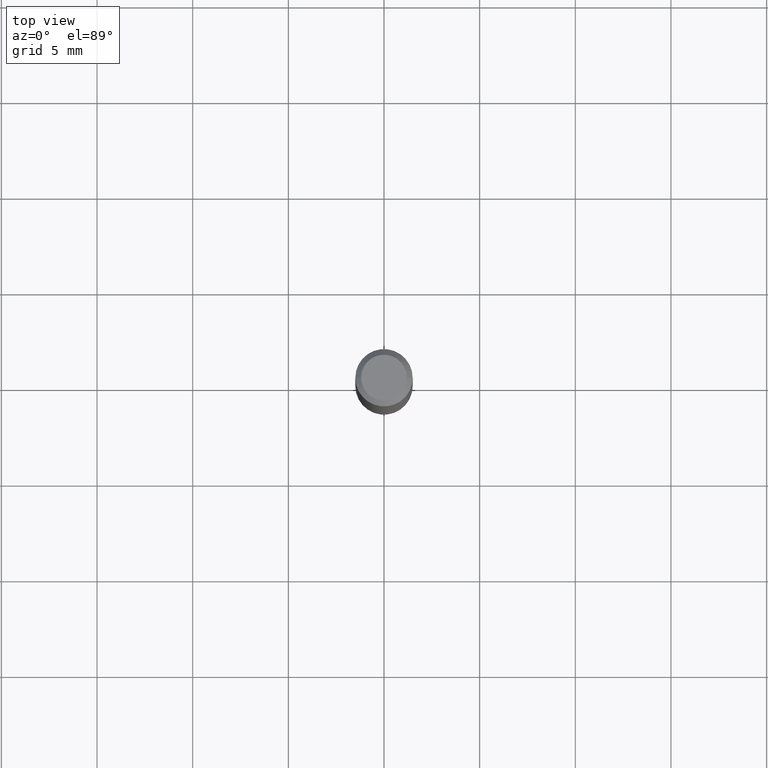
[diagram: clean part render]
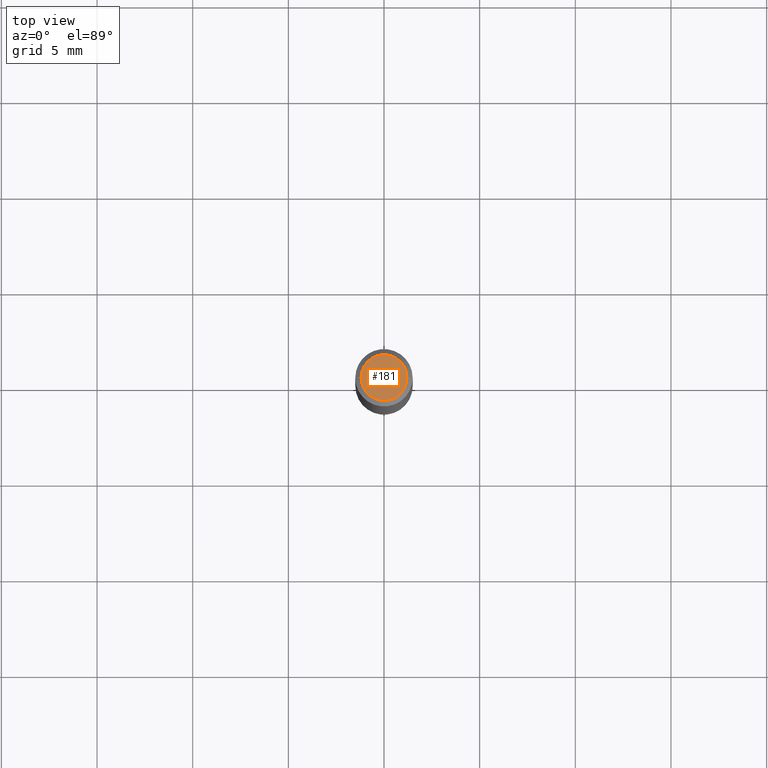
[diagram: same view with one face highlighted and labeled with its STEP entity id]
A machine part, top view. The second image highlights one B-rep face of the part: STEP entity #181.
In plain terms, the highlighted planar face has unit normal (0, -0, -1).
Its self-contained STEP definition (entity closure, byte-faithful):
#8 = ORIENTED_EDGE ( 'NONE', *, *, #32, .T. ) ;
#15 = DIRECTION ( 'NONE',  ( -2.445468806185136597E-29, 3.491481338843145583E-15, 1.000000000000000000 ) ) ;
#32 = EDGE_CURVE ( 'NONE', #361, #353, #458, .T. ) ;
#53 = PLANE ( 'NONE',  #480 ) ;
#128 = DIRECTION ( 'NONE',  ( 1.000000000000000000, -6.982962677686266711E-15, 4.876185090822587894E-29 ) ) ;
#144 = DIRECTION ( 'NONE',  ( 2.438088387897960049E-29, -3.491481338843145188E-15, -1.000000000000000000 ) ) ;
#167 = EDGE_LOOP ( 'NONE', ( #8, #345 ) ) ;
#181 = ADVANCED_FACE ( 'NONE', ( #357 ), #53, .F. ) ;
#208 = CARTESIAN_POINT ( 'NONE',  ( 8.265746106709734507E-48, -1.180129479067563789E-33, -3.380025165646692144E-19 ) ) ;
#237 = CARTESIAN_POINT ( 'NONE',  ( -0.04724000000000000421, 3.504923541997677355E-16, -3.380025165670481712E-19 ) ) ;
#255 = DIRECTION ( 'NONE',  ( -1.000000000000000000, 6.982962677686265922E-15, -4.876176775795935793E-29 ) ) ;
#256 = AXIS2_PLACEMENT_3D ( 'NONE', #292, #15, #322 ) ;
#264 = CIRCLE ( 'NONE', #297, 0.04724000000000000421 ) ;
#275 = DIRECTION ( 'NONE',  ( -2.445468806185136597E-29, 3.491481338843145583E-15, 1.000000000000000000 ) ) ;
#292 = CARTESIAN_POINT ( 'NONE',  ( 8.265746106709734507E-48, -1.180129479067563789E-33, -3.380025165646692144E-19 ) ) ;
#297 = AXIS2_PLACEMENT_3D ( 'NONE', #208, #275, #128 ) ;
#322 = DIRECTION ( 'NONE',  ( 1.000000000000000000, -6.982962677686266711E-15, 4.876185090822587894E-29 ) ) ;
#345 = ORIENTED_EDGE ( 'NONE', *, *, #475, .T. ) ;
#353 = VERTEX_POINT ( 'NONE', #483 ) ;
#357 = FACE_OUTER_BOUND ( 'NONE', #167, .T. ) ;
#361 = VERTEX_POINT ( 'NONE', #237 ) ;
#458 = CIRCLE ( 'NONE', #256, 0.04724000000000000421 ) ;
#468 = CARTESIAN_POINT ( 'NONE',  ( 4.132873053354867254E-48, -5.900647395337818946E-34, -1.690012582823346072E-19 ) ) ;
#475 = EDGE_CURVE ( 'NONE', #353, #361, #264, .T. ) ;
#480 = AXIS2_PLACEMENT_3D ( 'NONE', #468, #144, #255 ) ;
#483 = CARTESIAN_POINT ( 'NONE',  ( 0.04724000000000000421, -3.852183633974369345E-16, -3.380025165621689721E-19 ) ) ;